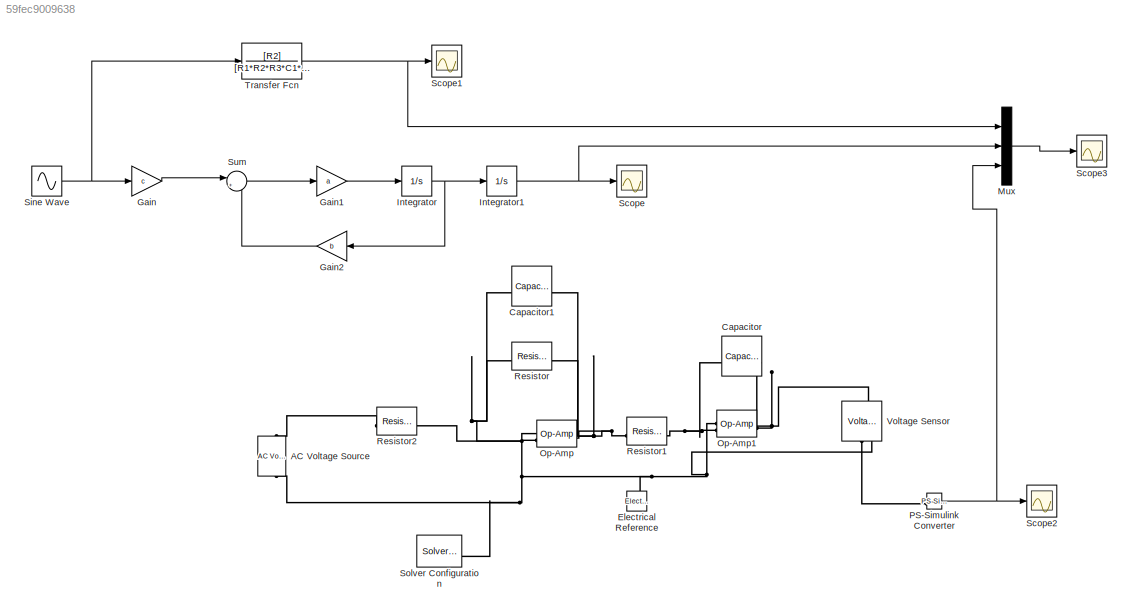
MODEL slx_59fec9009638
KIND model
CONFIG AbsTol = auto
CONFIG EnableMultiTasking = off
CONFIG FixedStep = auto
CONFIG MaxStep = auto
CONFIG MinStep = auto
CONFIG RelTol = 1e-3
CONFIG SampleTimeConstraint = Unconstrained
CONFIG SolverName = VariableStepAuto
CONFIG StartTime = 0.0
CONFIG StopTime = 5
BLOCK [Reference] AC Voltage Source  REF=fl_lib/Electrical/Electrical Sources/AC Voltage Source
  NameLocation = right
  SourceBlock = fl_lib/Electrical/Electrical Sources/AC Voltage Source
  SourceType = AC Voltage Source
BLOCK [Reference] Capacitor  REF=fl_lib/Electrical/Electrical Elements/Capacitor
  SourceBlock = fl_lib/Electrical/Electrical Elements/Capacitor
  SourceType = Capacitor
BLOCK [Reference] Capacitor1  REF=fl_lib/Electrical/Electrical Elements/Capacitor
  SourceBlock = fl_lib/Electrical/Electrical Elements/Capacitor
  SourceType = Capacitor
BLOCK [Reference] Electrical Reference  REF=fl_lib/Electrical/Electrical Elements/Electrical Reference
  NameLocation = right
  SourceBlock = fl_lib/Electrical/Electrical Elements/Electrical Reference
  SourceType = Electrical Reference
BLOCK [Gain] Gain
  Gain = c
BLOCK [Gain] Gain1
  Gain = a
BLOCK [Gain] Gain2
  Gain = b
  NameLocation = top
BLOCK [Integrator] Integrator
BLOCK [Integrator] Integrator1
BLOCK [Mux] Mux
  DisplayOption = bar
  Inputs = 3
BLOCK [Reference] Op-Amp  REF=fl_lib/Electrical/Electrical Elements/Op-Amp
  SourceBlock = fl_lib/Electrical/Electrical Elements/Op-Amp
  SourceType = Op-Amp
BLOCK [Reference] Op-Amp1  REF=fl_lib/Electrical/Electrical Elements/Op-Amp
  SourceBlock = fl_lib/Electrical/Electrical Elements/Op-Amp
  SourceType = Op-Amp
BLOCK [Reference] PS-Simulink Converter  REF=nesl_utility/PS-Simulink
Converter
  SourceBlock = nesl_utility/PS-Simulink\nConverter
  SourceType = PS-Simulink\nConverter
BLOCK [Reference] Resistor  REF=fl_lib/Electrical/Electrical Elements/Resistor
  SourceBlock = fl_lib/Electrical/Electrical Elements/Resistor
  SourceType = Resistor
BLOCK [Reference] Resistor1  REF=fl_lib/Electrical/Electrical Elements/Resistor
  SourceBlock = fl_lib/Electrical/Electrical Elements/Resistor
  SourceType = Resistor
BLOCK [Reference] Resistor2  REF=fl_lib/Electrical/Electrical Elements/Resistor
  SourceBlock = fl_lib/Electrical/Electrical Elements/Resistor
  SourceType = Resistor
BLOCK [Scope] Scope
  Floating = off
  NumInputPorts = 1
  ScopeSpecificationString = Simulink.scopes.TimeScopeBlockCfg('CurrentConfiguration', extmgr.ConfigurationSet(extmgr.Configuration('Core','General UI',true),extmgr.Configuration('Core','Source UI',true),extmgr.Configuration('Sources','WiredSimulink',true),extmgr.Configuration('Visuals','Time Domain',true,'SerializedDisplays',{struct('MinYLimReal','-0.0004','MaxYLimReal','0.00358','YLabelReal','','MinYLimMag','0.00000','MaxYL...<+1529ch>
BLOCK [Scope] Scope1
  Floating = off
  NumInputPorts = 1
  ScopeSpecificationString = Simulink.scopes.TimeScopeBlockCfg('CurrentConfiguration', extmgr.ConfigurationSet(extmgr.Configuration('Core','General UI',true),extmgr.Configuration('Core','Source UI',true),extmgr.Configuration('Sources','WiredSimulink',true,'DataLoggingVariableName','ScopeData1'),extmgr.Configuration('Visuals','Time Domain',true,'SerializedDisplays',{struct('MinYLimReal','-0.0004','MaxYLimReal','0.00358','YLabe...<+1568ch>
BLOCK [Scope] Scope2
  Floating = off
  NumInputPorts = 1
  ScopeSpecificationString = Simulink.scopes.TimeScopeBlockCfg('CurrentConfiguration', extmgr.ConfigurationSet(extmgr.Configuration('Core','General UI',true),extmgr.Configuration('Core','Source UI',true),extmgr.Configuration('Sources','WiredSimulink',true,'DataLoggingVariableName','ScopeData1'),extmgr.Configuration('Visuals','Time Domain',true,'SerializedDisplays',{struct('MinYLimReal','-0.0004','MaxYLimReal','0.00358','YLabe...<+1577ch>
BLOCK [Scope] Scope3
  Floating = off
  NumInputPorts = 1
  ScopeSpecificationString = Simulink.scopes.TimeScopeBlockCfg('CurrentConfiguration', extmgr.ConfigurationSet(extmgr.Configuration('Core','General UI',true),extmgr.Configuration('Core','Source UI',true),extmgr.Configuration('Sources','WiredSimulink',true,'DataLoggingVariableName','ScopeData2'),extmgr.Configuration('Visuals','Time Domain',true,'SerializedDisplays',{struct('MinYLimReal','-0.0004','MaxYLimReal','0.00358','YLabe...<+1523ch>
BLOCK [Sin] Sine Wave
  Frequency = 628.319
  SampleTime = 0
BLOCK [Reference] Solver Configuration  REF=nesl_utility/Solver
Configuration
  SourceBlock = nesl_utility/Solver\nConfiguration
  SourceType = Solver\nConfiguration
BLOCK [Sum] Sum
  Inputs = |+-
BLOCK [TransferFcn] Transfer Fcn
  Denominator = [R1*R2*R3*C1*C2  R1*R3*C2 0]
  Numerator = [R2]
BLOCK [Reference] Voltage Sensor  REF=fl_lib/Electrical/Electrical Sensors/Voltage Sensor
  NameLocation = right
  SourceBlock = fl_lib/Electrical/Electrical Sensors/Voltage Sensor
  SourceType = Voltage Sensor
LINE Gain1:1 -> Integrator:1
LINE Gain2:1 -> Sum:2
LINE Gain:1 -> Sum:1
NET Integrator1:1 -> Mux:2, Scope:1
NET Integrator:1 -> Gain2:1, Integrator1:1
LINE Mux:1 -> Scope3:1
NET PS-Simulink Converter:1 -> Mux:3, Scope2:1
NET Sine Wave:1 -> Gain:1, Transfer Fcn:1
LINE Sum:1 -> Gain1:1
NET Transfer Fcn:1 -> Mux:1, Scope1:1
PLINE AC Voltage Source:LConn1 -- Resistor2:LConn1
PNET net1: AC Voltage Source:RConn1 -- Electrical Reference:LConn1 -- Op-Amp1:LConn1 -- Op-Amp:LConn1 -- Solver Configuration:RConn1 -- Voltage Sensor:RConn2
PNET net2: Capacitor1:LConn1 -- Op-Amp:LConn2 -- Resistor2:RConn1 -- Resistor:LConn1
PNET net3: Capacitor1:RConn1 -- Op-Amp:RConn1 -- Resistor1:LConn1 -- Resistor:RConn1
PNET net4: Capacitor:LConn1 -- Op-Amp1:LConn2 -- Resistor1:RConn1
PNET net5: Capacitor:RConn1 -- Op-Amp1:RConn1 -- Voltage Sensor:LConn1
PLINE PS-Simulink Converter:LConn1 -- Voltage Sensor:RConn1
note: NET lines group one-source signal fan-out (src -> all destinations, sorted); 1:1 wires keep LINE; PNET lines group multi-terminal physical nets as a canonical sorted terminal list (undirected conserving connections); 2-terminal nets keep the pairwise PLINE form
